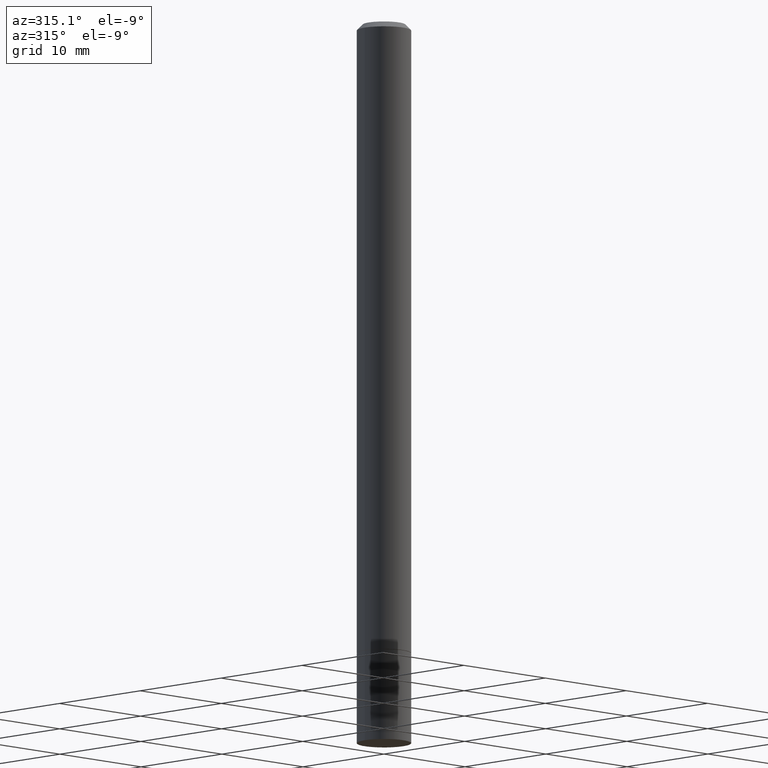
[diagram: clean part render]
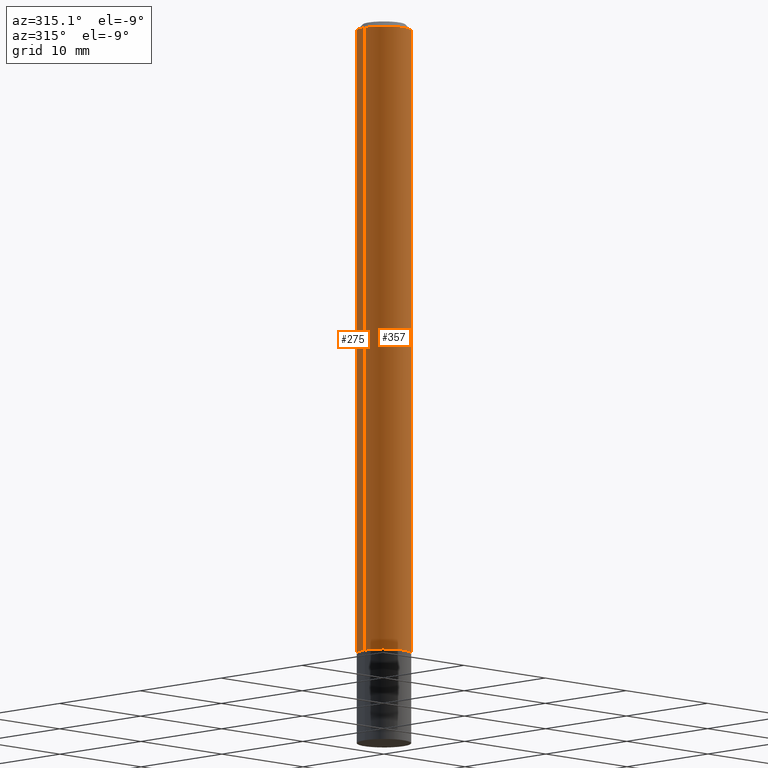
[diagram: same view with one multi-face feature highlighted, each face labeled with its STEP entity id]
A machine part, auxiliary view. The highlighted faces form ONE feature: a constant-radius fillet chain: 2 tangent blend faces with common blend radius 2.3812 mm. The faces share edges in the B-rep.
Their STEP definitions:
[1] entity #275 (Cylinder):
#13 = CARTESIAN_POINT ( 'NONE',  ( 4.890937612370289799E-31, -6.982962677686315028E-17, -0.02000000000000006981 ) ) ;
#19 = DIRECTION ( 'NONE',  ( 1.000000000000000000, -6.982962677686268288E-15, 0.000000000000000000 ) ) ;
#24 = CIRCLE ( 'NONE', #274, 0.09374999999999972244 ) ;
#43 = VECTOR ( 'NONE', #331, 39.37007874015748143 ) ;
#50 = AXIS2_PLACEMENT_3D ( 'NONE', #68, #100, #106 ) ;
#68 = CARTESIAN_POINT ( 'NONE',  ( 5.347017544723800702E-29, -7.634123947380537240E-15, -2.186500000000000110 ) ) ;
#87 = CARTESIAN_POINT ( 'NONE',  ( 0.09374999999999972244, -7.130013140679423114E-16, -0.02000000000000006981 ) ) ;
#100 = DIRECTION ( 'NONE',  ( -2.445468806185136597E-29, 3.491481338843145583E-15, 1.000000000000000000 ) ) ;
#106 = DIRECTION ( 'NONE',  ( 1.000000000000000000, -6.982962677686263555E-15, 0.000000000000000000 ) ) ;
#109 = DIRECTION ( 'NONE',  ( 1.000000000000000000, -6.982962677686266711E-15, 4.876176775795936353E-29 ) ) ;
#115 = ORIENTED_EDGE ( 'NONE', *, *, #351, .F. ) ;
#120 = VERTEX_POINT ( 'NONE', #228 ) ;
#122 = CARTESIAN_POINT ( 'NONE',  ( -0.09374999999999984734, 6.661338147750928396E-16, -4.611501647113966288E-30 ) ) ;
#129 = ORIENTED_EDGE ( 'NONE', *, *, #260, .T. ) ;
#139 = ORIENTED_EDGE ( 'NONE', *, *, #327, .T. ) ;
#150 = CARTESIAN_POINT ( 'NONE',  ( 0.09374999999999998612, -8.288776698413623955E-15, -2.186500000000000110 ) ) ;
#167 = VERTEX_POINT ( 'NONE', #150 ) ;
#171 = CIRCLE ( 'NONE', #50, 0.09374999999999998612 ) ;
#180 = EDGE_LOOP ( 'NONE', ( #129, #139, #190, #115 ) ) ;
#190 = ORIENTED_EDGE ( 'NONE', *, *, #246, .F. ) ;
#206 = DIRECTION ( 'NONE',  ( -2.445468806185136597E-29, 3.491481338843145583E-15, 1.000000000000000000 ) ) ;
#222 = VERTEX_POINT ( 'NONE', #87 ) ;
#228 = CARTESIAN_POINT ( 'NONE',  ( -0.09374999999999972244, 5.848231242562223324E-16, -0.02000000000000006981 ) ) ;
#240 = CYLINDRICAL_SURFACE ( 'NONE', #332, 0.09374999999999984734 ) ;
#246 = EDGE_CURVE ( 'NONE', #222, #120, #24, .T. ) ;
#260 = EDGE_CURVE ( 'NONE', #167, #359, #171, .T. ) ;
#274 = AXIS2_PLACEMENT_3D ( 'NONE', #13, #206, #19 ) ;
#275 = ADVANCED_FACE ( 'NONE', ( #328 ), #240, .T. ) ;
#282 = CARTESIAN_POINT ( 'NONE',  ( 0.09374999999999984734, -6.546527510330864194E-16, 4.571415727308682799E-30 ) ) ;
#284 = LINE ( 'NONE', #122, #43 ) ;
#300 = DIRECTION ( 'NONE',  ( -2.445468806185136597E-29, 3.491481338843145583E-15, 1.000000000000000000 ) ) ;
#308 = LINE ( 'NONE', #282, #352 ) ;
#315 = DIRECTION ( 'NONE',  ( -2.445468806185136877E-29, 3.491481338843145188E-15, 1.000000000000000000 ) ) ;
#327 = EDGE_CURVE ( 'NONE', #359, #120, #284, .T. ) ;
#328 = FACE_OUTER_BOUND ( 'NONE', #180, .T. ) ;
#331 = DIRECTION ( 'NONE',  ( -2.445468806185136877E-29, 3.491481338843145188E-15, 1.000000000000000000 ) ) ;
#332 = AXIS2_PLACEMENT_3D ( 'NONE', #349, #300, #109 ) ;
#349 = CARTESIAN_POINT ( 'NONE',  ( 0.000000000000000000, 0.000000000000000000, 0.000000000000000000 ) ) ;
#351 = EDGE_CURVE ( 'NONE', #167, #222, #308, .T. ) ;
#352 = VECTOR ( 'NONE', #315, 39.37007874015748143 ) ;
#358 = CARTESIAN_POINT ( 'NONE',  ( -0.09375000000000001388, -3.185842972303600823E-15, -2.186500000000000110 ) ) ;
#359 = VERTEX_POINT ( 'NONE', #358 ) ;
[2] entity #357 (Cylinder):
#4 = DIRECTION ( 'NONE',  ( 1.000000000000000000, -6.982962677686268288E-15, 0.000000000000000000 ) ) ;
#8 = ORIENTED_EDGE ( 'NONE', *, *, #327, .F. ) ;
#33 = ORIENTED_EDGE ( 'NONE', *, *, #143, .F. ) ;
#43 = VECTOR ( 'NONE', #331, 39.37007874015748143 ) ;
#59 = CARTESIAN_POINT ( 'NONE',  ( 0.000000000000000000, 0.000000000000000000, 0.000000000000000000 ) ) ;
#64 = DIRECTION ( 'NONE',  ( -2.445468806185136597E-29, 3.491481338843145583E-15, 1.000000000000000000 ) ) ;
#79 = CIRCLE ( 'NONE', #225, 0.09374999999999972244 ) ;
#82 = CARTESIAN_POINT ( 'NONE',  ( 4.890937612370289799E-31, -6.982962677686315028E-17, -0.02000000000000006981 ) ) ;
#87 = CARTESIAN_POINT ( 'NONE',  ( 0.09374999999999972244, -7.130013140679423114E-16, -0.02000000000000006981 ) ) ;
#94 = CIRCLE ( 'NONE', #163, 0.09374999999999998612 ) ;
#110 = DIRECTION ( 'NONE',  ( -2.445468806185136597E-29, 3.491481338843145583E-15, 1.000000000000000000 ) ) ;
#114 = FACE_OUTER_BOUND ( 'NONE', #326, .T. ) ;
#119 = DIRECTION ( 'NONE',  ( 1.000000000000000000, -6.982962677686266711E-15, 4.876176775795936353E-29 ) ) ;
#120 = VERTEX_POINT ( 'NONE', #228 ) ;
#122 = CARTESIAN_POINT ( 'NONE',  ( -0.09374999999999984734, 6.661338147750928396E-16, -4.611501647113966288E-30 ) ) ;
#143 = EDGE_CURVE ( 'NONE', #120, #222, #79, .T. ) ;
#150 = CARTESIAN_POINT ( 'NONE',  ( 0.09374999999999998612, -8.288776698413623955E-15, -2.186500000000000110 ) ) ;
#163 = AXIS2_PLACEMENT_3D ( 'NONE', #193, #110, #201 ) ;
#167 = VERTEX_POINT ( 'NONE', #150 ) ;
#177 = ORIENTED_EDGE ( 'NONE', *, *, #322, .T. ) ;
#193 = CARTESIAN_POINT ( 'NONE',  ( 5.347017544723800702E-29, -7.634123947380537240E-15, -2.186500000000000110 ) ) ;
#201 = DIRECTION ( 'NONE',  ( 1.000000000000000000, -6.982962677686263555E-15, 0.000000000000000000 ) ) ;
#222 = VERTEX_POINT ( 'NONE', #87 ) ;
#225 = AXIS2_PLACEMENT_3D ( 'NONE', #82, #64, #4 ) ;
#228 = CARTESIAN_POINT ( 'NONE',  ( -0.09374999999999972244, 5.848231242562223324E-16, -0.02000000000000006981 ) ) ;
#241 = ORIENTED_EDGE ( 'NONE', *, *, #351, .T. ) ;
#276 = AXIS2_PLACEMENT_3D ( 'NONE', #59, #279, #119 ) ;
#279 = DIRECTION ( 'NONE',  ( -2.445468806185136597E-29, 3.491481338843145583E-15, 1.000000000000000000 ) ) ;
#282 = CARTESIAN_POINT ( 'NONE',  ( 0.09374999999999984734, -6.546527510330864194E-16, 4.571415727308682799E-30 ) ) ;
#284 = LINE ( 'NONE', #122, #43 ) ;
#308 = LINE ( 'NONE', #282, #352 ) ;
#310 = CYLINDRICAL_SURFACE ( 'NONE', #276, 0.09374999999999984734 ) ;
#315 = DIRECTION ( 'NONE',  ( -2.445468806185136877E-29, 3.491481338843145188E-15, 1.000000000000000000 ) ) ;
#322 = EDGE_CURVE ( 'NONE', #359, #167, #94, .T. ) ;
#326 = EDGE_LOOP ( 'NONE', ( #8, #177, #241, #33 ) ) ;
#327 = EDGE_CURVE ( 'NONE', #359, #120, #284, .T. ) ;
#331 = DIRECTION ( 'NONE',  ( -2.445468806185136877E-29, 3.491481338843145188E-15, 1.000000000000000000 ) ) ;
#351 = EDGE_CURVE ( 'NONE', #167, #222, #308, .T. ) ;
#352 = VECTOR ( 'NONE', #315, 39.37007874015748143 ) ;
#357 = ADVANCED_FACE ( 'NONE', ( #114 ), #310, .T. ) ;
#358 = CARTESIAN_POINT ( 'NONE',  ( -0.09375000000000001388, -3.185842972303600823E-15, -2.186500000000000110 ) ) ;
#359 = VERTEX_POINT ( 'NONE', #358 ) ;